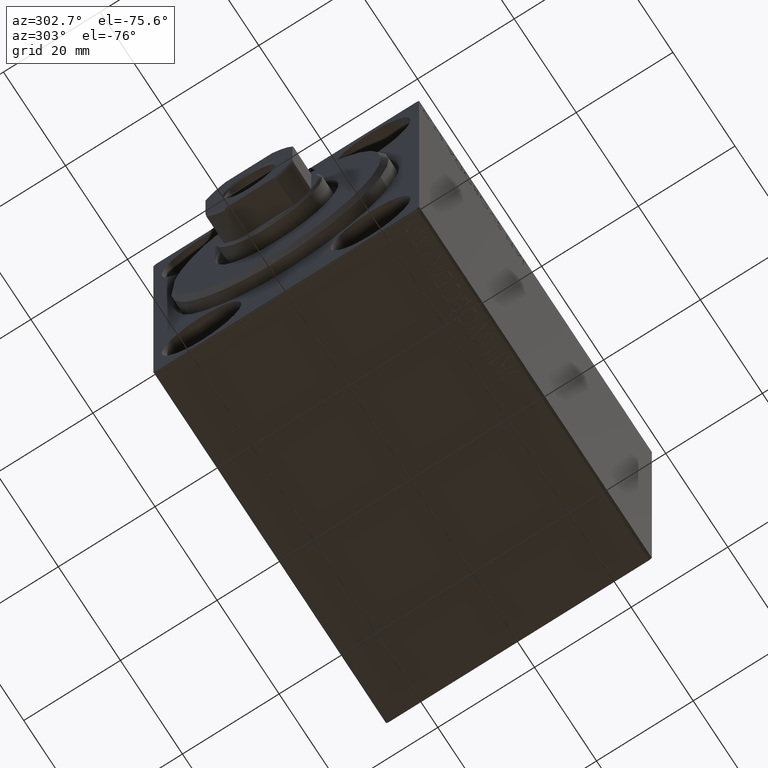
[diagram: clean part render]
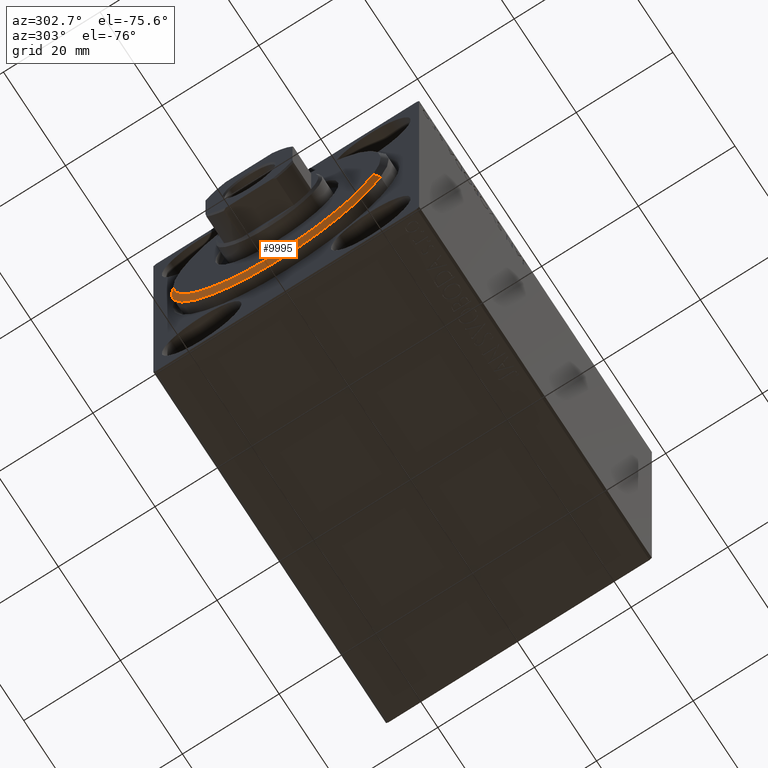
[diagram: same view with one face highlighted and labeled with its STEP entity id]
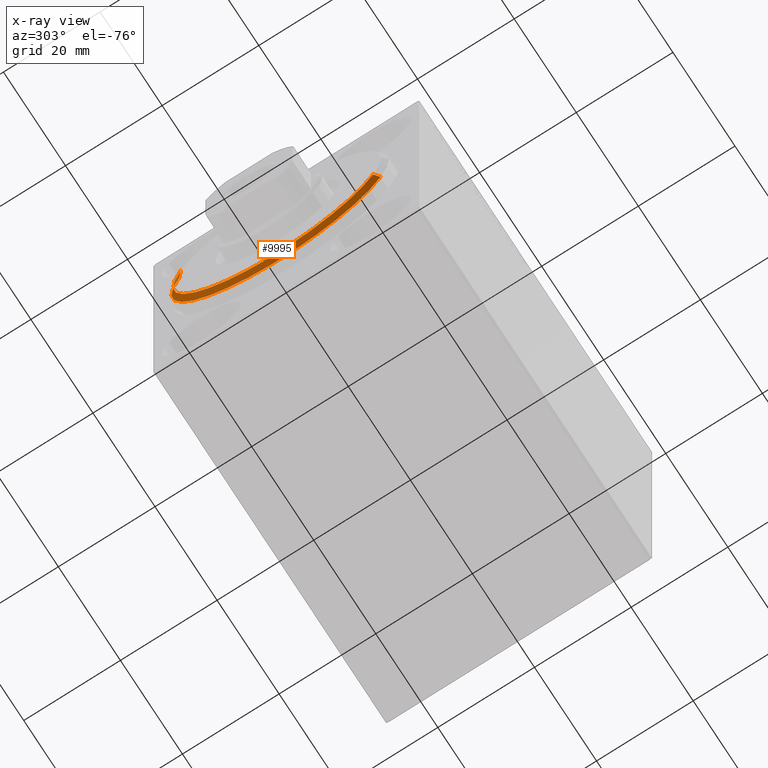
[diagram: x-ray of the same camera — body ghosted, the highlighted face saturated]
A machine part, auxiliary view. The second image highlights one B-rep face of the part: STEP entity #9995.
The next image is the same camera in x-ray: the body ghosted, the highlighted face saturated — about 0% of this face is hidden behind the body in this view.
In plain terms, the highlighted conical surface has half-angle 45 deg.
Its self-contained STEP definition (entity closure, byte-faithful):
#1262 = EDGE_CURVE ( 'NONE', #31968, #33619, #13884, .T. ) ;
#1770 = FACE_OUTER_BOUND ( 'NONE', #38981, .T. ) ;
#2027 = DIRECTION ( 'NONE',  ( -0.7071067811865487940, 8.659560562354919300E-17, -0.7071067811865463515 ) ) ;
#2592 = CARTESIAN_POINT ( 'NONE',  ( 1.999999999999999112, 0.000000000000000000, 22.50000000000000355 ) ) ;
#3322 = EDGE_CURVE ( 'NONE', #33619, #13486, #24470, .T. ) ;
#4205 = AXIS2_PLACEMENT_3D ( 'NONE', #32198, #31977, #29325 ) ;
#6457 = AXIS2_PLACEMENT_3D ( 'NONE', #38232, #15702, #18191 ) ;
#8043 = DIRECTION ( 'NONE',  ( -1.000000000000000000, 0.000000000000000000, 0.000000000000000000 ) ) ;
#9130 = VERTEX_POINT ( 'NONE', #38134 ) ;
#9995 = ADVANCED_FACE ( 'NONE', ( #1770 ), #24622, .T. ) ;
#12831 = LINE ( 'NONE', #26268, #25790 ) ;
#13486 = VERTEX_POINT ( 'NONE', #42828 ) ;
#13884 = LINE ( 'NONE', #28414, #35647 ) ;
#15702 = DIRECTION ( 'NONE',  ( 1.000000000000000000, -0.000000000000000000, 0.000000000000000000 ) ) ;
#18191 = DIRECTION ( 'NONE',  ( 0.000000000000000000, 0.000000000000000000, -1.000000000000000000 ) ) ;
#19568 = ORIENTED_EDGE ( 'NONE', *, *, #3322, .F. ) ;
#21085 = ORIENTED_EDGE ( 'NONE', *, *, #22187, .F. ) ;
#22187 = EDGE_CURVE ( 'NONE', #9130, #31968, #37403, .T. ) ;
#23221 = DIRECTION ( 'NONE',  ( 0.000000000000000000, 0.000000000000000000, -1.000000000000000000 ) ) ;
#24470 = CIRCLE ( 'NONE', #38535, 22.50000000000000355 ) ;
#24622 = CONICAL_SURFACE ( 'NONE', #4205, 21.50000000000000355, 0.7853981633974466137 ) ;
#25790 = VECTOR ( 'NONE', #2027, 1000.000000000000000 ) ;
#25902 = ORIENTED_EDGE ( 'NONE', *, *, #1262, .F. ) ;
#26268 = CARTESIAN_POINT ( 'NONE',  ( 3.000000000000000000, 2.632990618166810024E-15, -21.50000000000000355 ) ) ;
#28414 = CARTESIAN_POINT ( 'NONE',  ( 3.000000000000000000, 0.000000000000000000, 21.50000000000000355 ) ) ;
#29325 = DIRECTION ( 'NONE',  ( 0.000000000000000000, 0.000000000000000000, 1.000000000000000000 ) ) ;
#31502 = DIRECTION ( 'NONE',  ( -0.7071067811865487940, 0.000000000000000000, 0.7071067811865463515 ) ) ;
#31968 = VERTEX_POINT ( 'NONE', #43442 ) ;
#31977 = DIRECTION ( 'NONE',  ( -1.000000000000000000, 0.000000000000000000, 0.000000000000000000 ) ) ;
#32198 = CARTESIAN_POINT ( 'NONE',  ( 3.000000000000000000, 0.000000000000000000, 0.000000000000000000 ) ) ;
#33619 = VERTEX_POINT ( 'NONE', #2592 ) ;
#35647 = VECTOR ( 'NONE', #31502, 1000.000000000000000 ) ;
#37403 = CIRCLE ( 'NONE', #6457, 21.50000000000000355 ) ;
#37980 = ORIENTED_EDGE ( 'NONE', *, *, #40795, .T. ) ;
#38134 = CARTESIAN_POINT ( 'NONE',  ( 3.000000000000000000, 2.694222958124177598E-15, -21.50000000000000355 ) ) ;
#38232 = CARTESIAN_POINT ( 'NONE',  ( 3.000000000000000000, 0.000000000000000000, 0.000000000000000000 ) ) ;
#38535 = AXIS2_PLACEMENT_3D ( 'NONE', #41762, #8043, #23221 ) ;
#38981 = EDGE_LOOP ( 'NONE', ( #21085, #37980, #19568, #25902 ) ) ;
#40795 = EDGE_CURVE ( 'NONE', #9130, #13486, #12831, .T. ) ;
#41762 = CARTESIAN_POINT ( 'NONE',  ( 1.999999999999999112, 0.000000000000000000, 0.000000000000000000 ) ) ;
#42828 = CARTESIAN_POINT ( 'NONE',  ( 1.999999999999999112, 2.755455298081545172E-15, -22.50000000000000355 ) ) ;
#43442 = CARTESIAN_POINT ( 'NONE',  ( 3.000000000000000000, 0.000000000000000000, 21.50000000000000355 ) ) ;